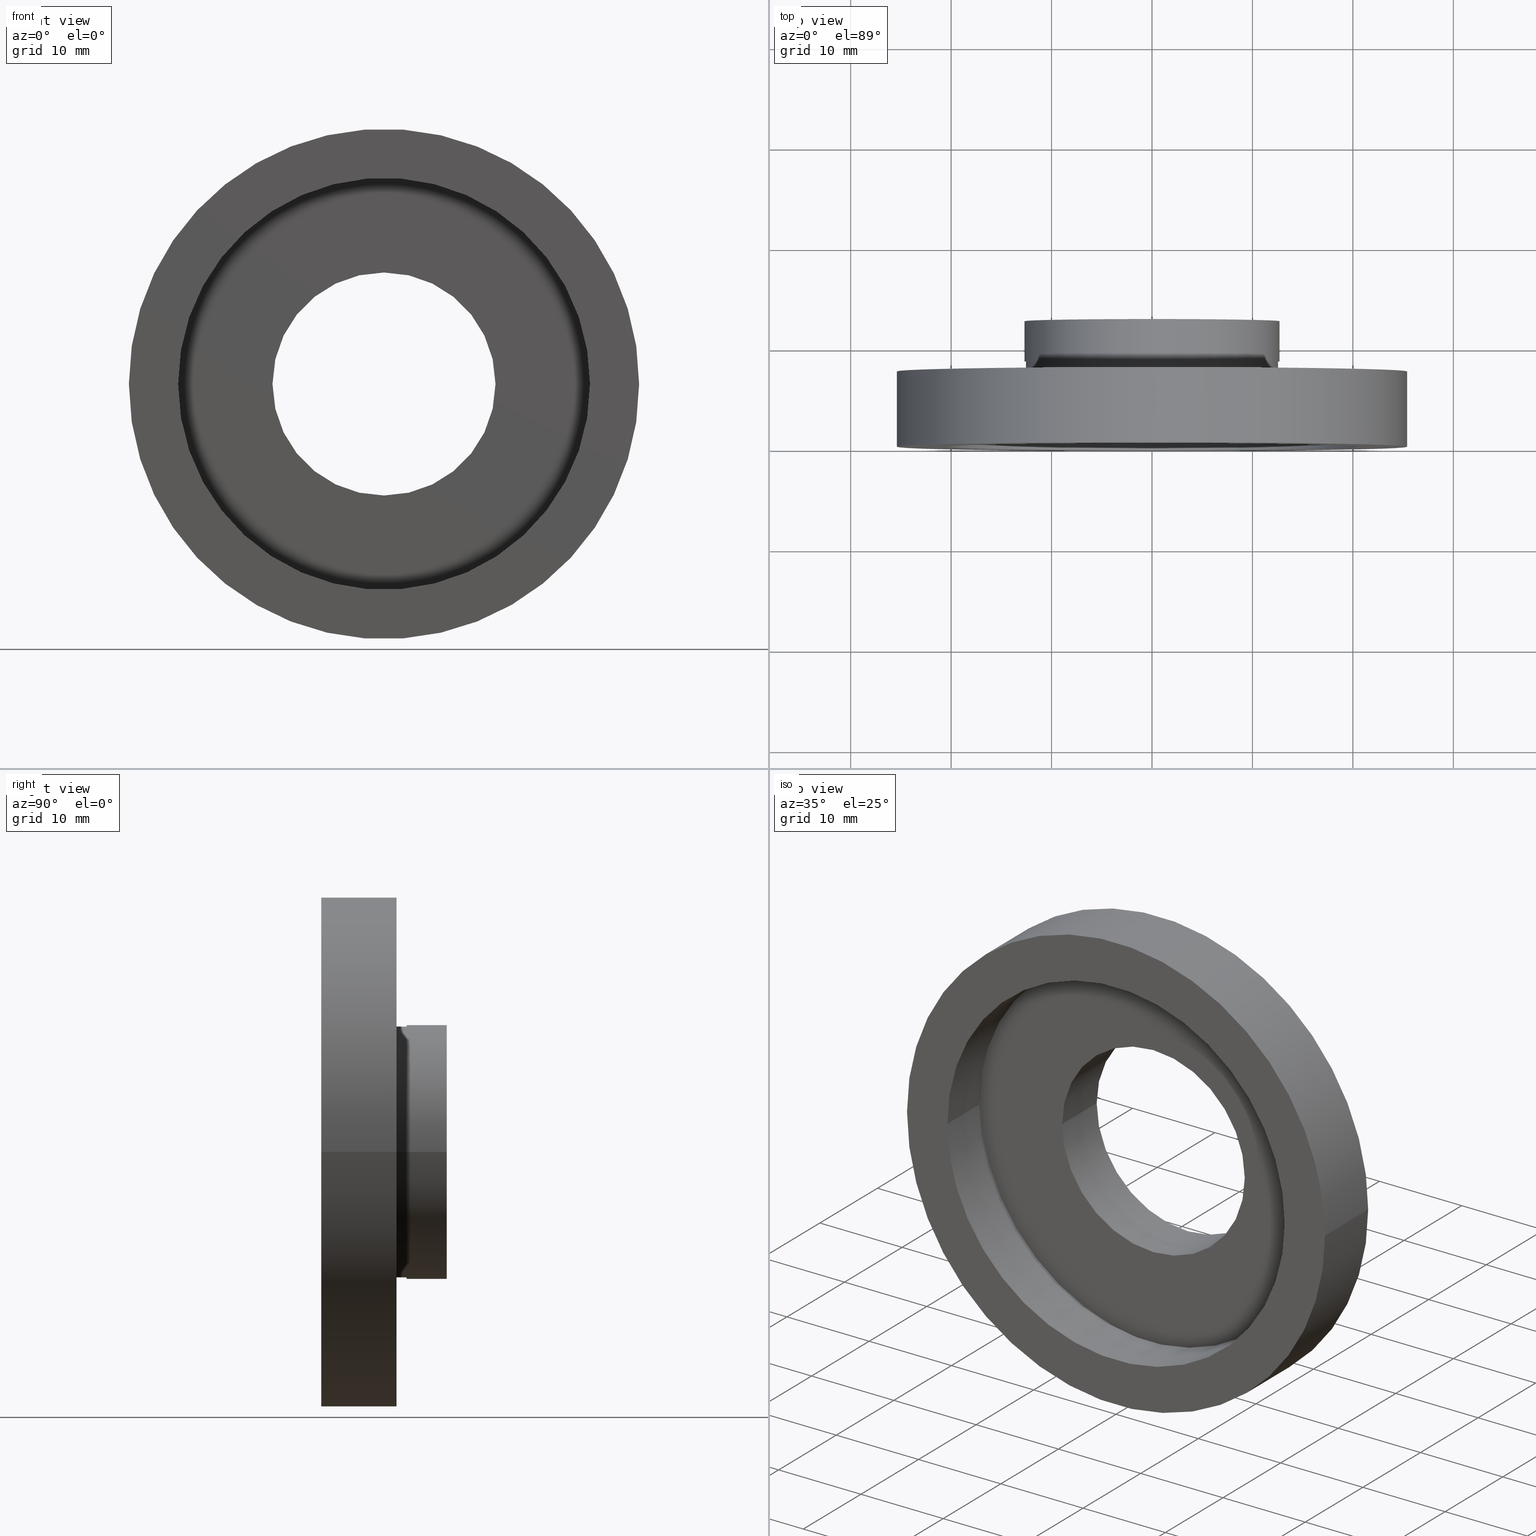
[diagram: canonical four-view strip — front | top / right | iso, engineering-drawing reading convention]
A machine part, canonical four-view strip (front | top / right | iso — engineering-drawing reading convention). The complete STEP part file that produces these views, byte-faithful:
ISO-10303-21;
HEADER;
FILE_DESCRIPTION (( 'STEP AP214' ),
    '1' );
FILE_NAME ('504042.STEP',
    '2019-10-08T02:54:37',
    ( 'user' ),
    ( '΢���й�' ),
    'SwSTEP 2.0',
    'SolidWorks 2016',
    '' );
FILE_SCHEMA (( 'AUTOMOTIVE_DESIGN' ));
ENDSEC;

DATA;
#1 = APPLICATION_CONTEXT ( 'automotive_design' ) ;
#2 = PRODUCT_DEFINITION ( 'δ֪', '', #325, #175 ) ;
#3 = ORIENTED_EDGE ( 'NONE', *, *, #55, .T. ) ;
#4 = CARTESIAN_POINT ( 'NONE',  ( 2.067940818438636500E-015, -3.469446951953614200E-015, 0.0000000000000000000 ) ) ;
#5 = VERTEX_POINT ( 'NONE', #129 ) ;
#6 = DIRECTION ( 'NONE',  ( -1.224646799147351000E-016, 1.000000000000000000, -0.0000000000000000000 ) ) ;
#7 = DIRECTION ( 'NONE',  ( -1.000000000000000000, -1.224646799147351000E-016, 0.0000000000000000000 ) ) ;
#8 = CARTESIAN_POINT ( 'NONE',  ( 25.39999999999999900, 16.88601823708208000, 3.110602869834276900E-015 ) ) ;
#9 = AXIS2_PLACEMENT_3D ( 'NONE', #261, #277, #158 ) ;
#10 = CIRCLE ( 'NONE', #509, 20.50000000000000000 ) ;
#11 = ORIENTED_EDGE ( 'NONE', *, *, #525, .F. ) ;
#12 = DIRECTION ( 'NONE',  ( -1.224646799147351000E-016, 1.000000000000000000, 0.0000000000000000000 ) ) ;
#13 = DIRECTION ( 'NONE',  ( -1.000000000000000000, 0.0000000000000000000, 0.0000000000000000000 ) ) ;
#14 = CARTESIAN_POINT ( 'NONE',  ( -25.39999999999999900, 7.499999999999992900, 0.0000000000000000000 ) ) ;
#15 = EDGE_CURVE ( 'NONE', #97, #494, #579, .T. ) ;
#16 =( NAMED_UNIT ( * ) PLANE_ANGLE_UNIT ( ) SI_UNIT ( $, .RADIAN. ) );
#17 = CYLINDRICAL_SURFACE ( 'NONE', #199, 12.69999999999999900 ) ;
#18 = SURFACE_STYLE_FILL_AREA ( #393 ) ;
#19 = ORIENTED_EDGE ( 'NONE', *, *, #55, .F. ) ;
#20 = EDGE_LOOP ( 'NONE', ( #377, #244, #283, #245 ) ) ;
#21 = CYLINDRICAL_SURFACE ( 'NONE', #488, 11.10000000000000100 ) ;
#22 = ORIENTED_EDGE ( 'NONE', *, *, #480, .T. ) ;
#23 = SURFACE_SIDE_STYLE ('',( #56 ) ) ;
#24 = PRESENTATION_STYLE_ASSIGNMENT (( #503 ) ) ;
#25 = EDGE_CURVE ( 'NONE', #448, #58, #440, .T. ) ;
#26 = CARTESIAN_POINT ( 'NONE',  ( 1.394385078907593000E-015, 5.499999999999998200, 0.0000000000000000000 ) ) ;
#27 = ORIENTED_EDGE ( 'NONE', *, *, #550, .T. ) ;
#28 = FACE_OUTER_BOUND ( 'NONE', #301, .T. ) ;
#29 = PLANE ( 'NONE',  #369 ) ;
#30 = ORIENTED_EDGE ( 'NONE', *, *, #521, .F. ) ;
#31 = UNCERTAINTY_MEASURE_WITH_UNIT (LENGTH_MEASURE( 1.000000000000000100E-005 ), #229, 'distance_accuracy_value', 'NONE');
#32 =( GEOMETRIC_REPRESENTATION_CONTEXT ( 3 ) GLOBAL_UNCERTAINTY_ASSIGNED_CONTEXT ( ( #53 ) ) GLOBAL_UNIT_ASSIGNED_CONTEXT ( ( #306, #399, #315 ) ) REPRESENTATION_CONTEXT ( 'NONE', 'WORKASPACE' ) );
#33 = APPLICATION_PROTOCOL_DEFINITION ( 'draft international standard', 'automotive_design', 1998, #1 ) ;
#34 = CARTESIAN_POINT ( 'NONE',  ( 25.39999999999999900, -7.703719777548943400E-031, 0.0000000000000000000 ) ) ;
#35 = ORIENTED_EDGE ( 'NONE', *, *, #549, .F. ) ;
#36 = MECHANICAL_DESIGN_GEOMETRIC_PRESENTATION_REPRESENTATION (  '', ( #65 ), #32 ) ;
#37 = ORIENTED_EDGE ( 'NONE', *, *, #588, .T. ) ;
#38 = PLANE ( 'NONE',  #70 ) ;
#39 = DIRECTION ( 'NONE',  ( -1.224646799147351000E-016, 1.000000000000000000, -0.0000000000000000000 ) ) ;
#40 = ORIENTED_EDGE ( 'NONE', *, *, #137, .F. ) ;
#41 = EDGE_LOOP ( 'NONE', ( #357, #198 ) ) ;
#42 =( NAMED_UNIT ( * ) SI_UNIT ( $, .STERADIAN. ) SOLID_ANGLE_UNIT ( ) );
#43 = LINE ( 'NONE', #577, #574 ) ;
#44 = CARTESIAN_POINT ( 'NONE',  ( 2.067940818438636500E-015, -3.469446951953614200E-015, 0.0000000000000000000 ) ) ;
#45 = CARTESIAN_POINT ( 'NONE',  ( 25.39999999999999900, 7.500000000000000000, 3.110602869834276900E-015 ) ) ;
#46 = FACE_OUTER_BOUND ( 'NONE', #117, .T. ) ;
#47 = UNCERTAINTY_MEASURE_WITH_UNIT (LENGTH_MEASURE( 1.000000000000000100E-005 ), #487, 'distance_accuracy_value', 'NONE');
#48 = EDGE_CURVE ( 'NONE', #593, #448, #364, .T. ) ;
#49 = ORIENTED_EDGE ( 'NONE', *, *, #537, .T. ) ;
#50 = DIRECTION ( 'NONE',  ( -1.224646799147351000E-016, 1.000000000000000000, -0.0000000000000000000 ) ) ;
#51 = VERTEX_POINT ( 'NONE', #334 ) ;
#52 = DIRECTION ( 'NONE',  ( -1.000000000000000000, -1.224646799147351000E-016, 0.0000000000000000000 ) ) ;
#53 = UNCERTAINTY_MEASURE_WITH_UNIT (LENGTH_MEASURE( 1.000000000000000100E-005 ), #306, 'distance_accuracy_value', 'NONE');
#54 = PRESENTATION_LAYER_ASSIGNMENT (  '', '', ( #65 ) ) ;
#55 = EDGE_CURVE ( 'NONE', #292, #616, #285, .T. ) ;
#56 = SURFACE_STYLE_FILL_AREA ( #75 ) ;
#57 = ORIENTED_EDGE ( 'NONE', *, *, #576, .F. ) ;
#58 = VERTEX_POINT ( 'NONE', #188 ) ;
#59 = EDGE_CURVE ( 'NONE', #582, #51, #372, .T. ) ;
#60 = EDGE_CURVE ( 'NONE', #255, #418, #10, .T. ) ;
#61 = CARTESIAN_POINT ( 'NONE',  ( -20.49999999999999600, -5.979972890205683900E-015, 0.0000000000000000000 ) ) ;
#62 = CARTESIAN_POINT ( 'NONE',  ( 20.50000000000000400, 16.88601823708208000, 2.510525938252074500E-015 ) ) ;
#63 = CARTESIAN_POINT ( 'NONE',  ( 25.39999999999999900, -3.588440821193433400E-016, 3.110602869834276900E-015 ) ) ;
#64 = COLOUR_RGB ( '',1.000000000000000000, 1.000000000000000000, 1.000000000000000000 ) ;
#65 = STYLED_ITEM ( 'NONE', ( #314 ), #438 ) ;
#66 = CARTESIAN_POINT ( 'NONE',  ( -12.69999999999999900, 12.49999999999999500, 0.0000000000000000000 ) ) ;
#67 = ORIENTED_EDGE ( 'NONE', *, *, #598, .T. ) ;
#68 = EDGE_LOOP ( 'NONE', ( #216, #256, #432, #170 ) ) ;
#69 = PRODUCT_CONTEXT ( 'NONE', #365, 'mechanical' ) ;
#70 = AXIS2_PLACEMENT_3D ( 'NONE', #149, #119, #302 ) ;
#71 =( GEOMETRIC_REPRESENTATION_CONTEXT ( 3 ) GLOBAL_UNCERTAINTY_ASSIGNED_CONTEXT ( ( #207 ) ) GLOBAL_UNIT_ASSIGNED_CONTEXT ( ( #111, #93, #463 ) ) REPRESENTATION_CONTEXT ( 'NONE', 'WORKASPACE' ) );
#72 =( NAMED_UNIT ( * ) SI_UNIT ( $, .STERADIAN. ) SOLID_ANGLE_UNIT ( ) );
#73 = DIRECTION ( 'NONE',  ( -1.224646799147351000E-016, 1.000000000000000000, -0.0000000000000000000 ) ) ;
#74 = CARTESIAN_POINT ( 'NONE',  ( 11.10000000000000100, 6.499999999999999100, 1.359357947053562400E-015 ) ) ;
#75 = FILL_AREA_STYLE ('',( #333 ) ) ;
#76 =( NAMED_UNIT ( * ) PLANE_ANGLE_UNIT ( ) SI_UNIT ( $, .RADIAN. ) );
#77 = FACE_OUTER_BOUND ( 'NONE', #307, .T. ) ;
#78 = VERTEX_POINT ( 'NONE', #359 ) ;
#79 = EDGE_CURVE ( 'NONE', #494, #402, #156, .T. ) ;
#80 =( LENGTH_UNIT ( ) NAMED_UNIT ( * ) SI_UNIT ( .MILLI., .METRE. ) );
#81 = ORIENTED_EDGE ( 'NONE', *, *, #532, .T. ) ;
#82 = ORIENTED_EDGE ( 'NONE', *, *, #480, .F. ) ;
#83 = SURFACE_SIDE_STYLE ('',( #391 ) ) ;
#84 = SURFACE_STYLE_USAGE ( .BOTH. , #87 ) ;
#85 = CARTESIAN_POINT ( 'NONE',  ( 2.067940818438636500E-015, -3.469446951953614200E-015, 0.0000000000000000000 ) ) ;
#86 = COLOUR_RGB ( '',1.000000000000000000, 1.000000000000000000, 1.000000000000000000 ) ;
#87 = SURFACE_SIDE_STYLE ('',( #299 ) ) ;
#88 = EDGE_LOOP ( 'NONE', ( #581, #267 ) ) ;
#89 = DIRECTION ( 'NONE',  ( -1.224646799147351000E-016, 1.000000000000000000, -0.0000000000000000000 ) ) ;
#90 = ORIENTED_EDGE ( 'NONE', *, *, #106, .T. ) ;
#91 = ADVANCED_FACE ( 'NONE', ( #312 ), #21, .F. ) ;
#92 = AXIS2_PLACEMENT_3D ( 'NONE', #330, #351, #356 ) ;
#93 =( NAMED_UNIT ( * ) PLANE_ANGLE_UNIT ( ) SI_UNIT ( $, .RADIAN. ) );
#94 = FACE_OUTER_BOUND ( 'NONE', #20, .T. ) ;
#95 = DIRECTION ( 'NONE',  ( -1.224646799147351000E-016, 1.000000000000000000, -0.0000000000000000000 ) ) ;
#96 = ORIENTED_EDGE ( 'NONE', *, *, #534, .F. ) ;
#97 = VERTEX_POINT ( 'NONE', #407 ) ;
#98 = AXIS2_PLACEMENT_3D ( 'NONE', #273, #95, #571 ) ;
#99 = SURFACE_STYLE_USAGE ( .BOTH. , #83 ) ;
#100 = ORIENTED_EDGE ( 'NONE', *, *, #557, .F. ) ;
#101 = AXIS2_PLACEMENT_3D ( 'NONE', #368, #565, #358 ) ;
#102 = DIRECTION ( 'NONE',  ( 1.000000000000000000, 1.224646799147351000E-016, 0.0000000000000000000 ) ) ;
#103 = EDGE_CURVE ( 'NONE', #402, #494, #417, .T. ) ;
#104 = DIRECTION ( 'NONE',  ( -1.000000000000000000, -1.224646799147351200E-016, 0.0000000000000000000 ) ) ;
#105 = FILL_AREA_STYLE ('',( #107 ) ) ;
#106 = EDGE_CURVE ( 'NONE', #58, #448, #615, .T. ) ;
#107 = FILL_AREA_STYLE_COLOUR ( '', #395 ) ;
#108 = ADVANCED_FACE ( 'NONE', ( #28 ), #155, .F. ) ;
#109 = AXIS2_PLACEMENT_3D ( 'NONE', #26, #374, #568 ) ;
#110 = DIRECTION ( 'NONE',  ( -1.000000000000000000, -1.562813942321447800E-016, 0.0000000000000000000 ) ) ;
#111 =( LENGTH_UNIT ( ) NAMED_UNIT ( * ) SI_UNIT ( .MILLI., .METRE. ) );
#112 = PLANE ( 'NONE',  #400 ) ;
#113 = DIRECTION ( 'NONE',  ( -1.000000000000000000, -1.692413147294445700E-016, 0.0000000000000000000 ) ) ;
#114 = EDGE_LOOP ( 'NONE', ( #341, #573 ) ) ;
#115 = AXIS2_PLACEMENT_3D ( 'NONE', #176, #531, #262 ) ;
#116 = AXIS2_PLACEMENT_3D ( 'NONE', #619, #89, #444 ) ;
#117 = EDGE_LOOP ( 'NONE', ( #208, #22, #67, #608 ) ) ;
#118 = ORIENTED_EDGE ( 'NONE', *, *, #517, .T. ) ;
#119 = DIRECTION ( 'NONE',  ( 1.224646799147351000E-016, -1.000000000000000000, 0.0000000000000000000 ) ) ;
#120 = CARTESIAN_POINT ( 'NONE',  ( 5.371323195044474300E-016, 12.49999999999999600, 0.0000000000000000000 ) ) ;
#121 = AXIS2_PLACEMENT_3D ( 'NONE', #130, #472, #258 ) ;
#122 =( LENGTH_UNIT ( ) NAMED_UNIT ( * ) SI_UNIT ( .MILLI., .METRE. ) );
#123 = EDGE_LOOP ( 'NONE', ( #412, #232 ) ) ;
#124 =( NAMED_UNIT ( * ) SI_UNIT ( $, .STERADIAN. ) SOLID_ANGLE_UNIT ( ) );
#125 = DIRECTION ( 'NONE',  ( -1.224646799147351000E-016, 1.000000000000000000, -0.0000000000000000000 ) ) ;
#126 =( NAMED_UNIT ( * ) PLANE_ANGLE_UNIT ( ) SI_UNIT ( $, .RADIAN. ) );
#127 = AXIS2_PLACEMENT_3D ( 'NONE', #427, #320, #604 ) ;
#128 = SURFACE_SIDE_STYLE ('',( #18 ) ) ;
#129 = CARTESIAN_POINT ( 'NONE',  ( -20.50000000000000400, 5.499999999999995600, 0.0000000000000000000 ) ) ;
#130 = CARTESIAN_POINT ( 'NONE',  ( 1.394385078907593200E-015, 5.499999999999996400, 0.0000000000000000000 ) ) ;
#131 = AXIS2_PLACEMENT_3D ( 'NONE', #310, #430, #454 ) ;
#132 = EDGE_LOOP ( 'NONE', ( #57, #321, #118, #251 ) ) ;
#133 = EDGE_LOOP ( 'NONE', ( #233, #11 ) ) ;
#134 = SURFACE_STYLE_USAGE ( .BOTH. , #139 ) ;
#135 = ADVANCED_FACE ( 'NONE', ( #600, #225 ), #211, .F. ) ;
#136 = AXIS2_PLACEMENT_3D ( 'NONE', #189, #599, #560 ) ;
#137 = EDGE_CURVE ( 'NONE', #363, #203, #462, .T. ) ;
#138 = EDGE_LOOP ( 'NONE', ( #323, #81, #609, #204 ) ) ;
#139 = SURFACE_SIDE_STYLE ('',( #304 ) ) ;
#140 = ADVANCED_FACE ( 'NONE', ( #492 ), #343, .F. ) ;
#141 = AXIS2_PLACEMENT_3D ( 'NONE', #328, #279, #257 ) ;
#142 = CARTESIAN_POINT ( 'NONE',  ( 21.10000000000000100, 16.88601823708208000, 2.584004746200915400E-015 ) ) ;
#143 = CYLINDRICAL_SURFACE ( 'NONE', #254, 12.55000000000000100 ) ;
#144 = FACE_OUTER_BOUND ( 'NONE', #145, .T. ) ;
#145 = EDGE_LOOP ( 'NONE', ( #100, #224, #322, #96 ) ) ;
#146 = UNCERTAINTY_MEASURE_WITH_UNIT (LENGTH_MEASURE( 1.000000000000000100E-005 ), #293, 'distance_accuracy_value', 'NONE');
#147 = ORIENTED_EDGE ( 'NONE', *, *, #557, .T. ) ;
#148 = FILL_AREA_STYLE ('',( #173 ) ) ;
#149 = CARTESIAN_POINT ( 'NONE',  ( 12.55000000000000200, 7.499999999999999100, 0.0000000000000000000 ) ) ;
#150 = PRODUCT ( '504042', '504042', '', ( #69 ) ) ;
#151 = AXIS2_PLACEMENT_3D ( 'NONE', #4, #214, #489 ) ;
#152 = CYLINDRICAL_SURFACE ( 'NONE', #265, 20.50000000000000400 ) ;
#153 = DIRECTION ( 'NONE',  ( -1.224646799147351000E-016, 1.000000000000000000, -0.0000000000000000000 ) ) ;
#154 = CARTESIAN_POINT ( 'NONE',  ( 11.10000000000000100, 6.499999999999998200, 0.0000000000000000000 ) ) ;
#155 = CYLINDRICAL_SURFACE ( 'NONE', #468, 11.10000000000000100 ) ;
#156 = CIRCLE ( 'NONE', #507, 25.39999999999999900 ) ;
#157 = MANIFOLD_SOLID_BREP ( '��ת1', #281 ) ;
#158 = DIRECTION ( 'NONE',  ( 1.000000000000000000, 0.0000000000000000000, 0.0000000000000000000 ) ) ;
#159 = DIRECTION ( 'NONE',  ( -1.000000000000000000, -1.365923996832131600E-016, 0.0000000000000000000 ) ) ;
#160 = DIRECTION ( 'NONE',  ( -1.224646799147351000E-016, 1.000000000000000000, -0.0000000000000000000 ) ) ;
#161 = AXIS2_PLACEMENT_3D ( 'NONE', #422, #166, #379 ) ;
#162 = DIRECTION ( 'NONE',  ( -1.224646799147351000E-016, 1.000000000000000000, -0.0000000000000000000 ) ) ;
#163 = ADVANCED_FACE ( 'NONE', ( #474, #561 ), #112, .F. ) ;
#164 = SURFACE_STYLE_FILL_AREA ( #491 ) ;
#165 = AXIS2_PLACEMENT_3D ( 'NONE', #447, #500, #621 ) ;
#166 = DIRECTION ( 'NONE',  ( -1.224646799147351000E-016, 1.000000000000000000, -0.0000000000000000000 ) ) ;
#167 = CARTESIAN_POINT ( 'NONE',  ( 5.371323195044474300E-016, 12.49999999999999600, 0.0000000000000000000 ) ) ;
#168 = SURFACE_STYLE_FILL_AREA ( #538 ) ;
#169 = ORIENTED_EDGE ( 'NONE', *, *, #545, .F. ) ;
#170 = ORIENTED_EDGE ( 'NONE', *, *, #612, .F. ) ;
#171 = DIRECTION ( 'NONE',  ( -1.224646799147351000E-016, 1.000000000000000000, -0.0000000000000000000 ) ) ;
#172 = FILL_AREA_STYLE ('',( #475 ) ) ;
#173 = FILL_AREA_STYLE_COLOUR ( '', #252 ) ;
#174 = CYLINDRICAL_SURFACE ( 'NONE', #247, 12.55000000000000100 ) ;
#175 = PRODUCT_DEFINITION_CONTEXT ( 'detailed design', #1, 'design' ) ;
#176 = CARTESIAN_POINT ( 'NONE',  ( 1.149455719078122700E-015, 7.499999999999998200, 0.0000000000000000000 ) ) ;
#177 = ORIENTED_EDGE ( 'NONE', *, *, #60, .F. ) ;
#178 = AXIS2_PLACEMENT_3D ( 'NONE', #219, #389, #13 ) ;
#179 = AXIS2_PLACEMENT_3D ( 'NONE', #85, #200, #52 ) ;
#180 = EDGE_CURVE ( 'NONE', #274, #416, #605, .T. ) ;
#181 = APPLICATION_PROTOCOL_DEFINITION ( 'draft international standard', 'automotive_design', 1998, #365 ) ;
#182 = AXIS2_PLACEMENT_3D ( 'NONE', #120, #73, #376 ) ;
#183 = PRESENTATION_STYLE_ASSIGNMENT (( #544 ) ) ;
#184 = COLOUR_RGB ( '',1.000000000000000000, 1.000000000000000000, 1.000000000000000000 ) ;
#185 = CARTESIAN_POINT ( 'NONE',  ( 0.0000000000000000000, 16.88601823708207700, 0.0000000000000000000 ) ) ;
#186 = ORIENTED_EDGE ( 'NONE', *, *, #612, .T. ) ;
#187 = UNCERTAINTY_MEASURE_WITH_UNIT (LENGTH_MEASURE( 1.000000000000000100E-005 ), #513, 'distance_accuracy_value', 'NONE');
#188 = CARTESIAN_POINT ( 'NONE',  ( -21.10000000000000100, 6.499999999999994700, 0.0000000000000000000 ) ) ;
#189 = CARTESIAN_POINT ( 'NONE',  ( 1.026991039163387700E-015, 8.499999999999998200, 0.0000000000000000000 ) ) ;
#190 = EDGE_LOOP ( 'NONE', ( #253, #542 ) ) ;
#191 =( GEOMETRIC_REPRESENTATION_CONTEXT ( 3 ) GLOBAL_UNCERTAINTY_ASSIGNED_CONTEXT ( ( #31 ) ) GLOBAL_UNIT_ASSIGNED_CONTEXT ( ( #229, #210, #535 ) ) REPRESENTATION_CONTEXT ( 'NONE', 'WORKASPACE' ) );
#192 = DIRECTION ( 'NONE',  ( -1.000000000000000000, 0.0000000000000000000, 0.0000000000000000000 ) ) ;
#193 = CIRCLE ( 'NONE', #362, 12.69999999999999900 ) ;
#194 = ORIENTED_EDGE ( 'NONE', *, *, #549, .T. ) ;
#195 = SURFACE_STYLE_USAGE ( .BOTH. , #23 ) ;
#196 = MECHANICAL_DESIGN_GEOMETRIC_PRESENTATION_REPRESENTATION (  '', ( #213 ), #191 ) ;
#197 = DIRECTION ( 'NONE',  ( -1.224646799147351000E-016, 1.000000000000000000, -0.0000000000000000000 ) ) ;
#198 = ORIENTED_EDGE ( 'NONE', *, *, #137, .T. ) ;
#199 = AXIS2_PLACEMENT_3D ( 'NONE', #318, #298, #355 ) ;
#200 = DIRECTION ( 'NONE',  ( -1.224646799147351000E-016, 1.000000000000000000, -0.0000000000000000000 ) ) ;
#201 = FACE_OUTER_BOUND ( 'NONE', #373, .T. ) ;
#202 = CARTESIAN_POINT ( 'NONE',  ( -12.55000000000000100, 16.88601823708207700, 0.0000000000000000000 ) ) ;
#203 = VERTEX_POINT ( 'NONE', #66 ) ;
#204 = ORIENTED_EDGE ( 'NONE', *, *, #103, .F. ) ;
#205 = DIRECTION ( 'NONE',  ( -1.224646799147351000E-016, 1.000000000000000000, -0.0000000000000000000 ) ) ;
#206 = DIRECTION ( 'NONE',  ( 1.000000000000000000, 1.224646799147351000E-016, 0.0000000000000000000 ) ) ;
#207 = UNCERTAINTY_MEASURE_WITH_UNIT (LENGTH_MEASURE( 1.000000000000000100E-005 ), #111, 'distance_accuracy_value', 'NONE');
#208 = ORIENTED_EDGE ( 'NONE', *, *, #590, .F. ) ;
#209 = VECTOR ( 'NONE', #263, 1000.000000000000000 ) ;
#210 =( NAMED_UNIT ( * ) PLANE_ANGLE_UNIT ( ) SI_UNIT ( $, .RADIAN. ) );
#211 = PLANE ( 'NONE',  #461 ) ;
#212 = ADVANCED_FACE ( 'NONE', ( #587, #539 ), #401, .F. ) ;
#213 = STYLED_ITEM ( 'NONE', ( #24 ), #437 ) ;
#214 = DIRECTION ( 'NONE',  ( -1.224646799147351000E-016, 1.000000000000000000, -0.0000000000000000000 ) ) ;
#215 = VERTEX_POINT ( 'NONE', #366 ) ;
#216 = ORIENTED_EDGE ( 'NONE', *, *, #566, .F. ) ;
#217 = PRESENTATION_STYLE_ASSIGNMENT (( #134 ) ) ;
#218 = ORIENTED_EDGE ( 'NONE', *, *, #180, .T. ) ;
#219 = CARTESIAN_POINT ( 'NONE',  ( 0.0000000000000000000, 16.88601823708207700, 0.0000000000000000000 ) ) ;
#220 = UNCERTAINTY_MEASURE_WITH_UNIT (LENGTH_MEASURE( 1.000000000000000100E-005 ), #80, 'distance_accuracy_value', 'NONE');
#221 = ADVANCED_FACE ( 'NONE', ( #614, #523 ), #29, .F. ) ;
#222 = FACE_OUTER_BOUND ( 'NONE', #476, .T. ) ;
#223 = FACE_OUTER_BOUND ( 'NONE', #378, .T. ) ;
#224 = ORIENTED_EDGE ( 'NONE', *, *, #525, .T. ) ;
#225 = FACE_OUTER_BOUND ( 'NONE', #41, .T. ) ;
#226 = ORIENTED_EDGE ( 'NONE', *, *, #534, .T. ) ;
#227 = EDGE_LOOP ( 'NONE', ( #240, #282, #186, #90 ) ) ;
#228 = CARTESIAN_POINT ( 'NONE',  ( -21.10000000000000100, 16.88601823708207300, 0.0000000000000000000 ) ) ;
#229 =( LENGTH_UNIT ( ) NAMED_UNIT ( * ) SI_UNIT ( .MILLI., .METRE. ) );
#230 = CARTESIAN_POINT ( 'NONE',  ( 11.10000000000000100, 12.49999999999999800, 0.0000000000000000000 ) ) ;
#231 = CARTESIAN_POINT ( 'NONE',  ( 0.0000000000000000000, 16.88601823708207700, 0.0000000000000000000 ) ) ;
#232 = ORIENTED_EDGE ( 'NONE', *, *, #598, .F. ) ;
#233 = ORIENTED_EDGE ( 'NONE', *, *, #580, .F. ) ;
#234 = PRESENTATION_LAYER_ASSIGNMENT (  '', '', ( #213 ) ) ;
#235 = CARTESIAN_POINT ( 'NONE',  ( 12.55000000000000100, 16.88601823708207700, 1.536931732929928400E-015 ) ) ;
#236 =( GEOMETRIC_REPRESENTATION_CONTEXT ( 3 ) GLOBAL_UNCERTAINTY_ASSIGNED_CONTEXT ( ( #47 ) ) GLOBAL_UNIT_ASSIGNED_CONTEXT ( ( #487, #16, #290 ) ) REPRESENTATION_CONTEXT ( 'NONE', 'WORKASPACE' ) );
#237 = EDGE_LOOP ( 'NONE', ( #218, #345 ) ) ;
#238 = VERTEX_POINT ( 'NONE', #249 ) ;
#239 = DIRECTION ( 'NONE',  ( -1.224646799147351000E-016, 1.000000000000000000, -0.0000000000000000000 ) ) ;
#240 = ORIENTED_EDGE ( 'NONE', *, *, #48, .F. ) ;
#241 = MECHANICAL_DESIGN_GEOMETRIC_PRESENTATION_REPRESENTATION (  '', ( #272 ), #236 ) ;
#242 = ORIENTED_EDGE ( 'NONE', *, *, #291, .F. ) ;
#243 = CARTESIAN_POINT ( 'NONE',  ( -11.10000000000000100, 12.49999999999999500, 0.0000000000000000000 ) ) ;
#244 = ORIENTED_EDGE ( 'NONE', *, *, #558, .T. ) ;
#245 = ORIENTED_EDGE ( 'NONE', *, *, #15, .F. ) ;
#246 = CARTESIAN_POINT ( 'NONE',  ( -12.69999999999999600, 8.499999999999996400, 0.0000000000000000000 ) ) ;
#247 = AXIS2_PLACEMENT_3D ( 'NONE', #326, #423, #192 ) ;
#248 = DIRECTION ( 'NONE',  ( -1.000000000000000000, 0.0000000000000000000, 0.0000000000000000000 ) ) ;
#249 = CARTESIAN_POINT ( 'NONE',  ( 12.55000000000000200, 8.500000000000000000, 1.536931732929928400E-015 ) ) ;
#250 = CARTESIAN_POINT ( 'NONE',  ( -11.09999999999999800, 6.499999999999995600, 0.0000000000000000000 ) ) ;
#251 = ORIENTED_EDGE ( 'NONE', *, *, #527, .F. ) ;
#252 = COLOUR_RGB ( '',1.000000000000000000, 1.000000000000000000, 1.000000000000000000 ) ;
#253 = ORIENTED_EDGE ( 'NONE', *, *, #59, .F. ) ;
#254 = AXIS2_PLACEMENT_3D ( 'NONE', #231, #50, #431 ) ;
#255 = VERTEX_POINT ( 'NONE', #61 ) ;
#256 = ORIENTED_EDGE ( 'NONE', *, *, #48, .T. ) ;
#257 = DIRECTION ( 'NONE',  ( -1.000000000000000000, -1.382249781654826400E-016, 0.0000000000000000000 ) ) ;
#258 = DIRECTION ( 'NONE',  ( -1.000000000000000000, -1.233215741215739600E-016, 0.0000000000000000000 ) ) ;
#259 = VERTEX_POINT ( 'NONE', #533 ) ;
#260 = COLOUR_RGB ( '',1.000000000000000000, 1.000000000000000000, 1.000000000000000000 ) ;
#261 = CARTESIAN_POINT ( 'NONE',  ( 0.0000000000000000000, 0.0000000000000000000, 0.0000000000000000000 ) ) ;
#262 = DIRECTION ( 'NONE',  ( -1.000000000000000000, -1.382249781654826400E-016, 0.0000000000000000000 ) ) ;
#263 = DIRECTION ( 'NONE',  ( -1.224646799147351000E-016, 1.000000000000000000, -0.0000000000000000000 ) ) ;
#264 =( NAMED_UNIT ( * ) SI_UNIT ( $, .STERADIAN. ) SOLID_ANGLE_UNIT ( ) );
#265 = AXIS2_PLACEMENT_3D ( 'NONE', #479, #415, #556 ) ;
#266 = CARTESIAN_POINT ( 'NONE',  ( 12.69999999999999900, 16.88601823708207700, 1.555301434917138400E-015 ) ) ;
#267 = ORIENTED_EDGE ( 'NONE', *, *, #590, .T. ) ;
#268 =( NAMED_UNIT ( * ) PLANE_ANGLE_UNIT ( ) SI_UNIT ( $, .RADIAN. ) );
#269 = VERTEX_POINT ( 'NONE', #63 ) ;
#270 = ORIENTED_EDGE ( 'NONE', *, *, #180, .F. ) ;
#271 =( LENGTH_UNIT ( ) NAMED_UNIT ( * ) SI_UNIT ( .MILLI., .METRE. ) );
#272 = STYLED_ITEM ( 'NONE', ( #183 ), #424 ) ;
#273 = CARTESIAN_POINT ( 'NONE',  ( 1.394385078907593200E-015, 5.499999999999996400, 0.0000000000000000000 ) ) ;
#274 = VERTEX_POINT ( 'NONE', #250 ) ;
#275 = ORIENTED_EDGE ( 'NONE', *, *, #554, .T. ) ;
#276 = LINE ( 'NONE', #62, #611 ) ;
#277 = DIRECTION ( 'NONE',  ( 0.0000000000000000000, 0.0000000000000000000, 1.000000000000000000 ) ) ;
#278 = CARTESIAN_POINT ( 'NONE',  ( -25.39999999999999900, 16.88601823708207300, 0.0000000000000000000 ) ) ;
#279 = DIRECTION ( 'NONE',  ( -1.224646799147351000E-016, 1.000000000000000000, -0.0000000000000000000 ) ) ;
#280 = ADVANCED_FACE ( 'NONE', ( #570 ), #607, .F. ) ;
#281 = CLOSED_SHELL ( 'NONE', ( #317, #409, #424, #91, #540, #361, #163, #140, #360, #280, #221, #108, #135, #437, #212, #367, #624, #512 ) ) ;
#282 = ORIENTED_EDGE ( 'NONE', *, *, #596, .F. ) ;
#283 = ORIENTED_EDGE ( 'NONE', *, *, #79, .F. ) ;
#284 = DIRECTION ( 'NONE',  ( -1.224646799147351000E-016, 1.000000000000000000, -0.0000000000000000000 ) ) ;
#285 = CIRCLE ( 'NONE', #511, 12.69999999999999800 ) ;
#286 = ORIENTED_EDGE ( 'NONE', *, *, #59, .T. ) ;
#287 = PRODUCT_DEFINITION_SHAPE ( 'NONE', 'NONE',  #2 ) ;
#288 = DIRECTION ( 'NONE',  ( -1.224646799147351000E-016, 1.000000000000000000, 0.0000000000000000000 ) ) ;
#289 = CARTESIAN_POINT ( 'NONE',  ( 5.371323195044474300E-016, 12.49999999999999600, 0.0000000000000000000 ) ) ;
#290 =( NAMED_UNIT ( * ) SI_UNIT ( $, .STERADIAN. ) SOLID_ANGLE_UNIT ( ) );
#291 = EDGE_CURVE ( 'NONE', #203, #363, #193, .T. ) ;
#292 = VERTEX_POINT ( 'NONE', #337 ) ;
#293 =( LENGTH_UNIT ( ) NAMED_UNIT ( * ) SI_UNIT ( .MILLI., .METRE. ) );
#294 = ORIENTED_EDGE ( 'NONE', *, *, #527, .T. ) ;
#295 = CARTESIAN_POINT ( 'NONE',  ( 1.271920398992858000E-015, 6.499999999999997300, 0.0000000000000000000 ) ) ;
#296 = CARTESIAN_POINT ( 'NONE',  ( 20.50000000000000400, -9.589210137015444400E-016, 2.510525938252074500E-015 ) ) ;
#297 = SURFACE_STYLE_USAGE ( .BOTH. , #300 ) ;
#298 = DIRECTION ( 'NONE',  ( -1.224646799147351000E-016, 1.000000000000000000, -0.0000000000000000000 ) ) ;
#299 = SURFACE_STYLE_FILL_AREA ( #105 ) ;
#300 = SURFACE_SIDE_STYLE ('',( #601 ) ) ;
#301 = EDGE_LOOP ( 'NONE', ( #169, #270, #294, #286 ) ) ;
#302 = DIRECTION ( 'NONE',  ( 1.000000000000000000, 1.224646799147351000E-016, 0.0000000000000000000 ) ) ;
#303 = DIRECTION ( 'NONE',  ( -1.224646799147351000E-016, 1.000000000000000000, -0.0000000000000000000 ) ) ;
#304 = SURFACE_STYLE_FILL_AREA ( #148 ) ;
#305 = ORIENTED_EDGE ( 'NONE', *, *, #106, .F. ) ;
#306 =( LENGTH_UNIT ( ) NAMED_UNIT ( * ) SI_UNIT ( .MILLI., .METRE. ) );
#307 = EDGE_LOOP ( 'NONE', ( #35, #3, #552, #40 ) ) ;
#308 = DIRECTION ( 'NONE',  ( -1.000000000000000000, -1.233215741215739600E-016, 0.0000000000000000000 ) ) ;
#309 = PRESENTATION_LAYER_ASSIGNMENT (  '', '', ( #272 ) ) ;
#310 = CARTESIAN_POINT ( 'NONE',  ( 1.026991039163387700E-015, 8.499999999999998200, 0.0000000000000000000 ) ) ;
#311 =( GEOMETRIC_REPRESENTATION_CONTEXT ( 3 ) GLOBAL_UNCERTAINTY_ASSIGNED_CONTEXT ( ( #371 ) ) GLOBAL_UNIT_ASSIGNED_CONTEXT ( ( #271, #397, #42 ) ) REPRESENTATION_CONTEXT ( 'NONE', 'WORKASPACE' ) );
#312 = FACE_OUTER_BOUND ( 'NONE', #132, .T. ) ;
#313 = ORIENTED_EDGE ( 'NONE', *, *, #554, .F. ) ;
#314 = PRESENTATION_STYLE_ASSIGNMENT (( #99 ) ) ;
#315 =( NAMED_UNIT ( * ) SI_UNIT ( $, .STERADIAN. ) SOLID_ANGLE_UNIT ( ) );
#316 = COLOUR_RGB ( '',1.000000000000000000, 1.000000000000000000, 1.000000000000000000 ) ;
#317 = ADVANCED_FACE ( 'NONE', ( #94 ), #347, .T. ) ;
#318 = CARTESIAN_POINT ( 'NONE',  ( 0.0000000000000000000, 16.88601823708207700, 0.0000000000000000000 ) ) ;
#319 = CARTESIAN_POINT ( 'NONE',  ( 1.026991039163387700E-015, 8.499999999999998200, 0.0000000000000000000 ) ) ;
#320 = DIRECTION ( 'NONE',  ( -1.224646799147351000E-016, 1.000000000000000000, -0.0000000000000000000 ) ) ;
#321 = ORIENTED_EDGE ( 'NONE', *, *, #545, .T. ) ;
#322 = ORIENTED_EDGE ( 'NONE', *, *, #553, .T. ) ;
#323 = ORIENTED_EDGE ( 'NONE', *, *, #558, .F. ) ;
#324 = MECHANICAL_DESIGN_GEOMETRIC_PRESENTATION_REPRESENTATION (  '', ( #375 ), #311 ) ;
#325 = PRODUCT_DEFINITION_FORMATION_WITH_SPECIFIED_SOURCE ( '�κ�', '', #150, .NOT_KNOWN. ) ;
#326 = CARTESIAN_POINT ( 'NONE',  ( 0.0000000000000000000, 16.88601823708207700, 0.0000000000000000000 ) ) ;
#327 = DIRECTION ( 'NONE',  ( -1.000000000000000000, -1.233215741215739600E-016, 0.0000000000000000000 ) ) ;
#328 = CARTESIAN_POINT ( 'NONE',  ( 1.026991039163387700E-015, 8.499999999999998200, 0.0000000000000000000 ) ) ;
#329 = DIRECTION ( 'NONE',  ( -1.224646799147351000E-016, 1.000000000000000000, -0.0000000000000000000 ) ) ;
#330 = CARTESIAN_POINT ( 'NONE',  ( 1.394385078907593000E-015, 5.499999999999998200, 0.0000000000000000000 ) ) ;
#331 = ORIENTED_EDGE ( 'NONE', *, *, #550, .F. ) ;
#332 = CARTESIAN_POINT ( 'NONE',  ( 1.271920398992858000E-015, 6.499999999999997300, 0.0000000000000000000 ) ) ;
#333 = FILL_AREA_STYLE_COLOUR ( '', #64 ) ;
#334 = CARTESIAN_POINT ( 'NONE',  ( 11.10000000000000100, 12.49999999999999800, 1.359357947053562400E-015 ) ) ;
#335 = FACE_BOUND ( 'NONE', #123, .T. ) ;
#336 = PRESENTATION_LAYER_ASSIGNMENT (  '', '', ( #375 ) ) ;
#337 = CARTESIAN_POINT ( 'NONE',  ( 12.69999999999999900, 8.500000000000000000, 1.555301434917138400E-015 ) ) ;
#338 = AXIS2_PLACEMENT_3D ( 'NONE', #473, #524, #102 ) ;
#339 = PLANE ( 'NONE',  #338 ) ;
#340 = PRESENTATION_STYLE_ASSIGNMENT (( #84 ) ) ;
#341 = ORIENTED_EDGE ( 'NONE', *, *, #79, .T. ) ;
#342 = CARTESIAN_POINT ( 'NONE',  ( -12.69999999999999900, 16.88601823708207700, 0.0000000000000000000 ) ) ;
#343 = CYLINDRICAL_SURFACE ( 'NONE', #434, 20.50000000000000400 ) ;
#344 = PRESENTATION_STYLE_ASSIGNMENT (( #520 ) ) ;
#345 = ORIENTED_EDGE ( 'NONE', *, *, #576, .T. ) ;
#346 = AXIS2_PLACEMENT_3D ( 'NONE', #592, #530, #618 ) ;
#347 = CYLINDRICAL_SURFACE ( 'NONE', #346, 25.39999999999999900 ) ;
#348 = DIRECTION ( 'NONE',  ( -1.000000000000000000, -1.224646799147351000E-016, 0.0000000000000000000 ) ) ;
#349 = ORIENTED_EDGE ( 'NONE', *, *, #566, .T. ) ;
#350 = COLOUR_RGB ( '',1.000000000000000000, 1.000000000000000000, 1.000000000000000000 ) ;
#351 = DIRECTION ( 'NONE',  ( -1.224646799147351000E-016, 1.000000000000000000, -0.0000000000000000000 ) ) ;
#352 = AXIS2_PLACEMENT_3D ( 'NONE', #589, #459, #610 ) ;
#353 = CARTESIAN_POINT ( 'NONE',  ( 20.50000000000000400, 5.500000000000000900, 2.510525938252074500E-015 ) ) ;
#354 = FILL_AREA_STYLE_COLOUR ( '', #260 ) ;
#355 = DIRECTION ( 'NONE',  ( -1.000000000000000000, 0.0000000000000000000, 0.0000000000000000000 ) ) ;
#356 = DIRECTION ( 'NONE',  ( -1.000000000000000000, -1.269309860470834200E-016, 0.0000000000000000000 ) ) ;
#357 = ORIENTED_EDGE ( 'NONE', *, *, #291, .T. ) ;
#358 = DIRECTION ( 'NONE',  ( -1.000000000000000000, -1.224646799147351200E-016, 0.0000000000000000000 ) ) ;
#359 = CARTESIAN_POINT ( 'NONE',  ( 12.55000000000000200, 7.500000000000000000, 1.536931732929928400E-015 ) ) ;
#360 = ADVANCED_FACE ( 'NONE', ( #335, #223 ), #339, .F. ) ;
#361 = ADVANCED_FACE ( 'NONE', ( #46 ), #152, .F. ) ;
#362 = AXIS2_PLACEMENT_3D ( 'NONE', #508, #466, #446 ) ;
#363 = VERTEX_POINT ( 'NONE', #505 ) ;
#364 = LINE ( 'NONE', #142, #449 ) ;
#365 = APPLICATION_CONTEXT ( 'automotive_design' ) ;
#366 = CARTESIAN_POINT ( 'NONE',  ( -12.54999999999999900, 8.499999999999996400, 0.0000000000000000000 ) ) ;
#367 = ADVANCED_FACE ( 'NONE', ( #144 ), #143, .T. ) ;
#368 = CARTESIAN_POINT ( 'NONE',  ( 2.067940818438636500E-015, -3.469446951953614200E-015, 0.0000000000000000000 ) ) ;
#369 = AXIS2_PLACEMENT_3D ( 'NONE', #154, #288, #348 ) ;
#370 = DIRECTION ( 'NONE',  ( -1.224646799147351000E-016, 1.000000000000000000, -0.0000000000000000000 ) ) ;
#371 = UNCERTAINTY_MEASURE_WITH_UNIT (LENGTH_MEASURE( 1.000000000000000100E-005 ), #271, 'distance_accuracy_value', 'NONE');
#372 = CIRCLE ( 'NONE', #510, 11.10000000000000100 ) ;
#373 = EDGE_LOOP ( 'NONE', ( #27, #194, #242, #382 ) ) ;
#374 = DIRECTION ( 'NONE',  ( -1.224646799147351000E-016, 1.000000000000000000, -0.0000000000000000000 ) ) ;
#375 = STYLED_ITEM ( 'NONE', ( #578 ), #361 ) ;
#376 = DIRECTION ( 'NONE',  ( -1.000000000000000000, -1.562813942321447500E-016, 0.0000000000000000000 ) ) ;
#377 = ORIENTED_EDGE ( 'NONE', *, *, #521, .T. ) ;
#378 = EDGE_LOOP ( 'NONE', ( #439, #349 ) ) ;
#379 = DIRECTION ( 'NONE',  ( -1.000000000000000000, -1.382249781654826400E-016, 0.0000000000000000000 ) ) ;
#380 = AXIS2_PLACEMENT_3D ( 'NONE', #429, #548, #484 ) ;
#381 = EDGE_LOOP ( 'NONE', ( #305, #493 ) ) ;
#382 = ORIENTED_EDGE ( 'NONE', *, *, #541, .F. ) ;
#383 = CARTESIAN_POINT ( 'NONE',  ( 0.0000000000000000000, 16.88601823708207700, 0.0000000000000000000 ) ) ;
#384 = SHAPE_DEFINITION_REPRESENTATION ( #287, #438 ) ;
#385 = DIRECTION ( 'NONE',  ( -1.000000000000000000, -1.365923996832131600E-016, 0.0000000000000000000 ) ) ;
#386 = DIRECTION ( 'NONE',  ( -1.224646799147351000E-016, 1.000000000000000000, -0.0000000000000000000 ) ) ;
#387 = PRESENTATION_STYLE_ASSIGNMENT (( #297 ) ) ;
#388 = EDGE_LOOP ( 'NONE', ( #275, #226 ) ) ;
#389 = DIRECTION ( 'NONE',  ( -1.224646799147351000E-016, 1.000000000000000000, -0.0000000000000000000 ) ) ;
#390 = EDGE_LOOP ( 'NONE', ( #82, #177, #49, #37 ) ) ;
#391 = SURFACE_STYLE_FILL_AREA ( #172 ) ;
#392 = CARTESIAN_POINT ( 'NONE',  ( 1.149455719078123100E-015, 7.499999999999996400, 0.0000000000000000000 ) ) ;
#393 = FILL_AREA_STYLE ('',( #597 ) ) ;
#394 = DIRECTION ( 'NONE',  ( -1.224646799147351000E-016, 1.000000000000000000, -0.0000000000000000000 ) ) ;
#395 = COLOUR_RGB ( '',1.000000000000000000, 1.000000000000000000, 1.000000000000000000 ) ;
#396 = FACE_OUTER_BOUND ( 'NONE', #114, .T. ) ;
#397 =( NAMED_UNIT ( * ) PLANE_ANGLE_UNIT ( ) SI_UNIT ( $, .RADIAN. ) );
#398 = VECTOR ( 'NONE', #239, 1000.000000000000000 ) ;
#399 =( NAMED_UNIT ( * ) PLANE_ANGLE_UNIT ( ) SI_UNIT ( $, .RADIAN. ) );
#400 = AXIS2_PLACEMENT_3D ( 'NONE', #34, #12, #7 ) ;
#401 = PLANE ( 'NONE',  #380 ) ;
#402 = VERTEX_POINT ( 'NONE', #45 ) ;
#403 = FILL_AREA_STYLE_COLOUR ( '', #350 ) ;
#404 = AXIS2_PLACEMENT_3D ( 'NONE', #585, #586, #110 ) ;
#405 = VERTEX_POINT ( 'NONE', #353 ) ;
#406 = FACE_BOUND ( 'NONE', #133, .T. ) ;
#407 = CARTESIAN_POINT ( 'NONE',  ( -25.39999999999999100, -6.580049821787884700E-015, 0.0000000000000000000 ) ) ;
#408 =( GEOMETRIC_REPRESENTATION_CONTEXT ( 3 ) GLOBAL_UNCERTAINTY_ASSIGNED_CONTEXT ( ( #220 ) ) GLOBAL_UNIT_ASSIGNED_CONTEXT ( ( #80, #76, #72 ) ) REPRESENTATION_CONTEXT ( 'NONE', 'WORKASPACE' ) );
#409 = ADVANCED_FACE ( 'NONE', ( #222 ), #174, .T. ) ;
#410 = MECHANICAL_DESIGN_GEOMETRIC_PRESENTATION_REPRESENTATION (  '', ( #443 ), #408 ) ;
#411 = CARTESIAN_POINT ( 'NONE',  ( 21.10000000000000100, 6.500000000000000000, 2.584004746200915400E-015 ) ) ;
#412 = ORIENTED_EDGE ( 'NONE', *, *, #588, .F. ) ;
#413 = CIRCLE ( 'NONE', #98, 21.10000000000000100 ) ;
#414 = CIRCLE ( 'NONE', #92, 20.50000000000000400 ) ;
#415 = DIRECTION ( 'NONE',  ( -1.224646799147351000E-016, 1.000000000000000000, -0.0000000000000000000 ) ) ;
#416 = VERTEX_POINT ( 'NONE', #74 ) ;
#417 = CIRCLE ( 'NONE', #490, 25.39999999999999900 ) ;
#418 = VERTEX_POINT ( 'NONE', #296 ) ;
#419 = ORIENTED_EDGE ( 'NONE', *, *, #553, .F. ) ;
#420 = LINE ( 'NONE', #228, #398 ) ;
#421 = PRESENTATION_LAYER_ASSIGNMENT (  '', '', ( #443 ) ) ;
#422 = CARTESIAN_POINT ( 'NONE',  ( 1.149455719078122700E-015, 7.499999999999998200, 0.0000000000000000000 ) ) ;
#423 = DIRECTION ( 'NONE',  ( -1.224646799147351000E-016, 1.000000000000000000, -0.0000000000000000000 ) ) ;
#424 = ADVANCED_FACE ( 'NONE', ( #201 ), #17, .T. ) ;
#425 = EDGE_LOOP ( 'NONE', ( #331, #19 ) ) ;
#426 = CIRCLE ( 'NONE', #179, 25.39999999999999500 ) ;
#427 = CARTESIAN_POINT ( 'NONE',  ( 0.0000000000000000000, 16.88601823708207700, 0.0000000000000000000 ) ) ;
#428 = CARTESIAN_POINT ( 'NONE',  ( -20.50000000000000400, 16.88601823708207300, 0.0000000000000000000 ) ) ;
#429 = CARTESIAN_POINT ( 'NONE',  ( 12.69999999999999900, 8.500000000000000000, 0.0000000000000000000 ) ) ;
#430 = DIRECTION ( 'NONE',  ( -1.224646799147351000E-016, 1.000000000000000000, -0.0000000000000000000 ) ) ;
#431 = DIRECTION ( 'NONE',  ( -1.000000000000000000, 0.0000000000000000000, 0.0000000000000000000 ) ) ;
#432 = ORIENTED_EDGE ( 'NONE', *, *, #25, .T. ) ;
#433 = CIRCLE ( 'NONE', #101, 20.50000000000000000 ) ;
#434 = AXIS2_PLACEMENT_3D ( 'NONE', #185, #197, #113 ) ;
#435 = EDGE_LOOP ( 'NONE', ( #30, #559 ) ) ;
#436 = CIRCLE ( 'NONE', #109, 20.50000000000000400 ) ;
#437 = ADVANCED_FACE ( 'NONE', ( #77 ), #617, .T. ) ;
#438 = ADVANCED_BREP_SHAPE_REPRESENTATION ( '504042', ( #157, #9 ), #71 ) ;
#439 = ORIENTED_EDGE ( 'NONE', *, *, #596, .T. ) ;
#440 = CIRCLE ( 'NONE', #514, 21.10000000000000100 ) ;
#441 = CIRCLE ( 'NONE', #115, 12.55000000000000100 ) ;
#442 = VECTOR ( 'NONE', #457, 1000.000000000000000 ) ;
#443 = STYLED_ITEM ( 'NONE', ( #340 ), #157 ) ;
#444 = DIRECTION ( 'NONE',  ( -1.000000000000000000, -1.562813942321447800E-016, 0.0000000000000000000 ) ) ;
#445 =( GEOMETRIC_REPRESENTATION_CONTEXT ( 3 ) GLOBAL_UNCERTAINTY_ASSIGNED_CONTEXT ( ( #467 ) ) GLOBAL_UNIT_ASSIGNED_CONTEXT ( ( #122, #126, #124 ) ) REPRESENTATION_CONTEXT ( 'NONE', 'WORKASPACE' ) );
#446 = DIRECTION ( 'NONE',  ( -1.000000000000000000, -1.365923996832131600E-016, 0.0000000000000000000 ) ) ;
#447 = CARTESIAN_POINT ( 'NONE',  ( 0.0000000000000000000, 16.88601823708207700, 0.0000000000000000000 ) ) ;
#448 = VERTEX_POINT ( 'NONE', #411 ) ;
#449 = VECTOR ( 'NONE', #205, 1000.000000000000000 ) ;
#450 = CIRCLE ( 'NONE', #116, 11.10000000000000000 ) ;
#451 = DIRECTION ( 'NONE',  ( -1.224646799147351000E-016, 1.000000000000000000, -0.0000000000000000000 ) ) ;
#452 = MECHANICAL_DESIGN_GEOMETRIC_PRESENTATION_REPRESENTATION (  '', ( #460 ), #445 ) ;
#453 = PRESENTATION_LAYER_ASSIGNMENT (  '', '', ( #460 ) ) ;
#454 = DIRECTION ( 'NONE',  ( -1.000000000000000000, -1.365923996832131900E-016, 0.0000000000000000000 ) ) ;
#455 = DIRECTION ( 'NONE',  ( -1.000000000000000000, -1.365923996832131900E-016, 0.0000000000000000000 ) ) ;
#456 = VECTOR ( 'NONE', #39, 1000.000000000000000 ) ;
#457 = DIRECTION ( 'NONE',  ( -1.224646799147351000E-016, 1.000000000000000000, -0.0000000000000000000 ) ) ;
#458 = DIRECTION ( 'NONE',  ( -1.000000000000000000, 0.0000000000000000000, 0.0000000000000000000 ) ) ;
#459 = DIRECTION ( 'NONE',  ( -1.224646799147351000E-016, 1.000000000000000000, -0.0000000000000000000 ) ) ;
#460 = STYLED_ITEM ( 'NONE', ( #217 ), #140 ) ;
#461 = AXIS2_PLACEMENT_3D ( 'NONE', #230, #567, #206 ) ;
#462 = CIRCLE ( 'NONE', #469, 12.69999999999999900 ) ;
#463 =( NAMED_UNIT ( * ) SI_UNIT ( $, .STERADIAN. ) SOLID_ANGLE_UNIT ( ) );
#464 = CIRCLE ( 'NONE', #121, 21.10000000000000100 ) ;
#465 = LINE ( 'NONE', #235, #456 ) ;
#466 = DIRECTION ( 'NONE',  ( -1.224646799147351000E-016, 1.000000000000000000, -0.0000000000000000000 ) ) ;
#467 = UNCERTAINTY_MEASURE_WITH_UNIT (LENGTH_MEASURE( 1.000000000000000100E-005 ), #122, 'distance_accuracy_value', 'NONE');
#468 = AXIS2_PLACEMENT_3D ( 'NONE', #383, #394, #248 ) ;
#469 = AXIS2_PLACEMENT_3D ( 'NONE', #167, #162, #159 ) ;
#470 = DIRECTION ( 'NONE',  ( -1.224646799147351000E-016, 1.000000000000000000, -0.0000000000000000000 ) ) ;
#471 = PRODUCT_RELATED_PRODUCT_CATEGORY ( 'part', '', ( #150 ) ) ;
#472 = DIRECTION ( 'NONE',  ( -1.224646799147351000E-016, 1.000000000000000000, -0.0000000000000000000 ) ) ;
#473 = CARTESIAN_POINT ( 'NONE',  ( 20.50000000000000400, 5.500000000000000000, 0.0000000000000000000 ) ) ;
#474 = FACE_OUTER_BOUND ( 'NONE', #435, .T. ) ;
#475 = FILL_AREA_STYLE_COLOUR ( '', #316 ) ;
#476 = EDGE_LOOP ( 'NONE', ( #620, #147, #313, #419 ) ) ;
#477 = VECTOR ( 'NONE', #160, 1000.000000000000000 ) ;
#478 =( GEOMETRIC_REPRESENTATION_CONTEXT ( 3 ) GLOBAL_UNCERTAINTY_ASSIGNED_CONTEXT ( ( #146 ) ) GLOBAL_UNIT_ASSIGNED_CONTEXT ( ( #293, #268, #264 ) ) REPRESENTATION_CONTEXT ( 'NONE', 'WORKASPACE' ) );
#479 = CARTESIAN_POINT ( 'NONE',  ( 0.0000000000000000000, 16.88601823708207700, 0.0000000000000000000 ) ) ;
#480 = EDGE_CURVE ( 'NONE', #418, #405, #276, .T. ) ;
#481 = CARTESIAN_POINT ( 'NONE',  ( -21.10000000000000100, 5.499999999999993800, 0.0000000000000000000 ) ) ;
#482 = MECHANICAL_DESIGN_GEOMETRIC_PRESENTATION_REPRESENTATION (  '', ( #486 ), #478 ) ;
#483 = CIRCLE ( 'NONE', #136, 12.55000000000000100 ) ;
#484 = DIRECTION ( 'NONE',  ( -1.000000000000000000, -1.224646799147351000E-016, 0.0000000000000000000 ) ) ;
#485 = PRESENTATION_LAYER_ASSIGNMENT (  '', '', ( #486 ) ) ;
#486 = STYLED_ITEM ( 'NONE', ( #387 ), #108 ) ;
#487 =( LENGTH_UNIT ( ) NAMED_UNIT ( * ) SI_UNIT ( .MILLI., .METRE. ) );
#488 = AXIS2_PLACEMENT_3D ( 'NONE', #569, #370, #458 ) ;
#489 = DIRECTION ( 'NONE',  ( -1.000000000000000000, -1.224646799147351000E-016, 0.0000000000000000000 ) ) ;
#490 = AXIS2_PLACEMENT_3D ( 'NONE', #392, #386, #385 ) ;
#491 = FILL_AREA_STYLE ('',( #603 ) ) ;
#492 = FACE_OUTER_BOUND ( 'NONE', #390, .T. ) ;
#493 = ORIENTED_EDGE ( 'NONE', *, *, #25, .F. ) ;
#494 = VERTEX_POINT ( 'NONE', #14 ) ;
#495 = LINE ( 'NONE', #8, #442 ) ;
#496 = AXIS2_PLACEMENT_3D ( 'NONE', #332, #329, #327 ) ;
#497 =( GEOMETRIC_REPRESENTATION_CONTEXT ( 3 ) GLOBAL_UNCERTAINTY_ASSIGNED_CONTEXT ( ( #187 ) ) GLOBAL_UNIT_ASSIGNED_CONTEXT ( ( #513, #501, #498 ) ) REPRESENTATION_CONTEXT ( 'NONE', 'WORKASPACE' ) );
#498 =( NAMED_UNIT ( * ) SI_UNIT ( $, .STERADIAN. ) SOLID_ANGLE_UNIT ( ) );
#499 = MECHANICAL_DESIGN_GEOMETRIC_PRESENTATION_REPRESENTATION (  '', ( #504 ), #497 ) ;
#500 = DIRECTION ( 'NONE',  ( -1.224646799147351000E-016, 1.000000000000000000, -0.0000000000000000000 ) ) ;
#501 =( NAMED_UNIT ( * ) PLANE_ANGLE_UNIT ( ) SI_UNIT ( $, .RADIAN. ) );
#502 = PRESENTATION_LAYER_ASSIGNMENT (  '', '', ( #504 ) ) ;
#503 = SURFACE_STYLE_USAGE ( .BOTH. , #128 ) ;
#504 = STYLED_ITEM ( 'NONE', ( #344 ), #91 ) ;
#505 = CARTESIAN_POINT ( 'NONE',  ( 12.69999999999999900, 12.49999999999999800, 1.555301434917138400E-015 ) ) ;
#506 = VECTOR ( 'NONE', #125, 1000.000000000000000 ) ;
#507 = AXIS2_PLACEMENT_3D ( 'NONE', #555, #551, #547 ) ;
#508 = CARTESIAN_POINT ( 'NONE',  ( 5.371323195044474300E-016, 12.49999999999999600, 0.0000000000000000000 ) ) ;
#509 = AXIS2_PLACEMENT_3D ( 'NONE', #44, #572, #104 ) ;
#510 = AXIS2_PLACEMENT_3D ( 'NONE', #289, #613, #575 ) ;
#511 = AXIS2_PLACEMENT_3D ( 'NONE', #319, #451, #455 ) ;
#512 = ADVANCED_FACE ( 'NONE', ( #602 ), #594, .T. ) ;
#513 =( LENGTH_UNIT ( ) NAMED_UNIT ( * ) SI_UNIT ( .MILLI., .METRE. ) );
#514 = AXIS2_PLACEMENT_3D ( 'NONE', #295, #303, #308 ) ;
#515 = LINE ( 'NONE', #202, #477 ) ;
#516 = VECTOR ( 'NONE', #6, 1000.000000000000000 ) ;
#517 = EDGE_CURVE ( 'NONE', #51, #582, #595, .T. ) ;
#518 = CARTESIAN_POINT ( 'NONE',  ( 11.10000000000000100, 16.88601823708207700, 1.359357947053562400E-015 ) ) ;
#519 = LINE ( 'NONE', #266, #506 ) ;
#520 = SURFACE_STYLE_USAGE ( .BOTH. , #526 ) ;
#521 = EDGE_CURVE ( 'NONE', #97, #269, #426, .T. ) ;
#522 = CYLINDRICAL_SURFACE ( 'NONE', #127, 21.10000000000000100 ) ;
#523 = FACE_BOUND ( 'NONE', #237, .T. ) ;
#524 = DIRECTION ( 'NONE',  ( 1.224646799147351000E-016, -1.000000000000000000, 0.0000000000000000000 ) ) ;
#525 = EDGE_CURVE ( 'NONE', #78, #259, #622, .T. ) ;
#526 = SURFACE_SIDE_STYLE ('',( #168 ) ) ;
#527 = EDGE_CURVE ( 'NONE', #274, #582, #43, .T. ) ;
#528 = CIRCLE ( 'NONE', #131, 12.69999999999999800 ) ;
#529 = VECTOR ( 'NONE', #470, 1000.000000000000000 ) ;
#530 = DIRECTION ( 'NONE',  ( -1.224646799147351000E-016, 1.000000000000000000, -0.0000000000000000000 ) ) ;
#531 = DIRECTION ( 'NONE',  ( -1.224646799147351000E-016, 1.000000000000000000, -0.0000000000000000000 ) ) ;
#532 = EDGE_CURVE ( 'NONE', #269, #97, #583, .T. ) ;
#533 = CARTESIAN_POINT ( 'NONE',  ( -12.54999999999999900, 7.499999999999996400, 0.0000000000000000000 ) ) ;
#534 = EDGE_CURVE ( 'NONE', #238, #215, #564, .T. ) ;
#535 =( NAMED_UNIT ( * ) SI_UNIT ( $, .STERADIAN. ) SOLID_ANGLE_UNIT ( ) );
#536 = LINE ( 'NONE', #342, #529 ) ;
#537 = EDGE_CURVE ( 'NONE', #255, #5, #584, .T. ) ;
#538 = FILL_AREA_STYLE ('',( #403 ) ) ;
#539 = FACE_BOUND ( 'NONE', #388, .T. ) ;
#540 = ADVANCED_FACE ( 'NONE', ( #562 ), #522, .F. ) ;
#541 = EDGE_CURVE ( 'NONE', #616, #203, #536, .T. ) ;
#542 = ORIENTED_EDGE ( 'NONE', *, *, #517, .F. ) ;
#543 = VECTOR ( 'NONE', #284, 1000.000000000000000 ) ;
#544 = SURFACE_STYLE_USAGE ( .BOTH. , #606 ) ;
#545 = EDGE_CURVE ( 'NONE', #416, #51, #546, .T. ) ;
#546 = LINE ( 'NONE', #518, #516 ) ;
#547 = DIRECTION ( 'NONE',  ( -1.000000000000000000, -1.365923996832131600E-016, 0.0000000000000000000 ) ) ;
#548 = DIRECTION ( 'NONE',  ( -1.224646799147351000E-016, 1.000000000000000000, 0.0000000000000000000 ) ) ;
#549 = EDGE_CURVE ( 'NONE', #292, #363, #519, .T. ) ;
#550 = EDGE_CURVE ( 'NONE', #616, #292, #528, .T. ) ;
#551 = DIRECTION ( 'NONE',  ( -1.224646799147351000E-016, 1.000000000000000000, -0.0000000000000000000 ) ) ;
#552 = ORIENTED_EDGE ( 'NONE', *, *, #541, .T. ) ;
#553 = EDGE_CURVE ( 'NONE', #259, #215, #515, .T. ) ;
#554 = EDGE_CURVE ( 'NONE', #215, #238, #483, .T. ) ;
#555 = CARTESIAN_POINT ( 'NONE',  ( 1.149455719078123100E-015, 7.499999999999996400, 0.0000000000000000000 ) ) ;
#556 = DIRECTION ( 'NONE',  ( -1.000000000000000000, -1.692413147294445700E-016, 0.0000000000000000000 ) ) ;
#557 = EDGE_CURVE ( 'NONE', #78, #238, #465, .T. ) ;
#558 = EDGE_CURVE ( 'NONE', #269, #402, #495, .T. ) ;
#559 = ORIENTED_EDGE ( 'NONE', *, *, #532, .F. ) ;
#560 = DIRECTION ( 'NONE',  ( -1.000000000000000000, -1.382249781654826400E-016, 0.0000000000000000000 ) ) ;
#561 = FACE_BOUND ( 'NONE', #88, .T. ) ;
#562 = FACE_OUTER_BOUND ( 'NONE', #68, .T. ) ;
#563 = FILL_AREA_STYLE ('',( #354 ) ) ;
#564 = CIRCLE ( 'NONE', #141, 12.55000000000000100 ) ;
#565 = DIRECTION ( 'NONE',  ( -1.224646799147351000E-016, 1.000000000000000000, -0.0000000000000000000 ) ) ;
#566 = EDGE_CURVE ( 'NONE', #593, #591, #464, .T. ) ;
#567 = DIRECTION ( 'NONE',  ( 1.224646799147351000E-016, -1.000000000000000000, 0.0000000000000000000 ) ) ;
#568 = DIRECTION ( 'NONE',  ( -1.000000000000000000, -1.269309860470834200E-016, 0.0000000000000000000 ) ) ;
#569 = CARTESIAN_POINT ( 'NONE',  ( 0.0000000000000000000, 16.88601823708207700, 0.0000000000000000000 ) ) ;
#570 = FACE_OUTER_BOUND ( 'NONE', #227, .T. ) ;
#571 = DIRECTION ( 'NONE',  ( -1.000000000000000000, -1.233215741215739600E-016, 0.0000000000000000000 ) ) ;
#572 = DIRECTION ( 'NONE',  ( -1.224646799147351000E-016, 1.000000000000000000, -0.0000000000000000000 ) ) ;
#573 = ORIENTED_EDGE ( 'NONE', *, *, #103, .T. ) ;
#574 = VECTOR ( 'NONE', #153, 1000.000000000000000 ) ;
#575 = DIRECTION ( 'NONE',  ( -1.000000000000000000, -1.562813942321447500E-016, 0.0000000000000000000 ) ) ;
#576 = EDGE_CURVE ( 'NONE', #416, #274, #450, .T. ) ;
#577 = CARTESIAN_POINT ( 'NONE',  ( -11.10000000000000100, 16.88601823708207700, 0.0000000000000000000 ) ) ;
#578 = PRESENTATION_STYLE_ASSIGNMENT (( #195 ) ) ;
#579 = LINE ( 'NONE', #278, #209 ) ;
#580 = EDGE_CURVE ( 'NONE', #259, #78, #441, .T. ) ;
#581 = ORIENTED_EDGE ( 'NONE', *, *, #60, .T. ) ;
#582 = VERTEX_POINT ( 'NONE', #243 ) ;
#583 = CIRCLE ( 'NONE', #151, 25.39999999999999500 ) ;
#584 = LINE ( 'NONE', #428, #543 ) ;
#585 = CARTESIAN_POINT ( 'NONE',  ( 1.271920398992858000E-015, 6.499999999999997300, 0.0000000000000000000 ) ) ;
#586 = DIRECTION ( 'NONE',  ( -1.224646799147351000E-016, 1.000000000000000000, -0.0000000000000000000 ) ) ;
#587 = FACE_OUTER_BOUND ( 'NONE', #425, .T. ) ;
#588 = EDGE_CURVE ( 'NONE', #5, #405, #436, .T. ) ;
#589 = CARTESIAN_POINT ( 'NONE',  ( 0.0000000000000000000, 16.88601823708207700, 0.0000000000000000000 ) ) ;
#590 = EDGE_CURVE ( 'NONE', #418, #255, #433, .T. ) ;
#591 = VERTEX_POINT ( 'NONE', #481 ) ;
#592 = CARTESIAN_POINT ( 'NONE',  ( 0.0000000000000000000, 16.88601823708207700, 0.0000000000000000000 ) ) ;
#593 = VERTEX_POINT ( 'NONE', #623 ) ;
#594 = CYLINDRICAL_SURFACE ( 'NONE', #165, 25.39999999999999900 ) ;
#595 = CIRCLE ( 'NONE', #182, 11.10000000000000100 ) ;
#596 = EDGE_CURVE ( 'NONE', #591, #593, #413, .T. ) ;
#597 = FILL_AREA_STYLE_COLOUR ( '', #86 ) ;
#598 = EDGE_CURVE ( 'NONE', #405, #5, #414, .T. ) ;
#599 = DIRECTION ( 'NONE',  ( -1.224646799147351000E-016, 1.000000000000000000, -0.0000000000000000000 ) ) ;
#600 = FACE_BOUND ( 'NONE', #190, .T. ) ;
#601 = SURFACE_STYLE_FILL_AREA ( #563 ) ;
#602 = FACE_OUTER_BOUND ( 'NONE', #138, .T. ) ;
#603 = FILL_AREA_STYLE_COLOUR ( '', #184 ) ;
#604 = DIRECTION ( 'NONE',  ( -1.000000000000000000, -1.644287654954319300E-016, 0.0000000000000000000 ) ) ;
#605 = CIRCLE ( 'NONE', #404, 11.10000000000000000 ) ;
#606 = SURFACE_SIDE_STYLE ('',( #164 ) ) ;
#607 = CYLINDRICAL_SURFACE ( 'NONE', #352, 21.10000000000000100 ) ;
#608 = ORIENTED_EDGE ( 'NONE', *, *, #537, .F. ) ;
#609 = ORIENTED_EDGE ( 'NONE', *, *, #15, .T. ) ;
#610 = DIRECTION ( 'NONE',  ( -1.000000000000000000, -1.644287654954319300E-016, 0.0000000000000000000 ) ) ;
#611 = VECTOR ( 'NONE', #171, 1000.000000000000000 ) ;
#612 = EDGE_CURVE ( 'NONE', #591, #58, #420, .T. ) ;
#613 = DIRECTION ( 'NONE',  ( -1.224646799147351000E-016, 1.000000000000000000, -0.0000000000000000000 ) ) ;
#614 = FACE_OUTER_BOUND ( 'NONE', #381, .T. ) ;
#615 = CIRCLE ( 'NONE', #496, 21.10000000000000100 ) ;
#616 = VERTEX_POINT ( 'NONE', #246 ) ;
#617 = CYLINDRICAL_SURFACE ( 'NONE', #178, 12.69999999999999900 ) ;
#618 = DIRECTION ( 'NONE',  ( -1.000000000000000000, -1.365923996832131600E-016, 0.0000000000000000000 ) ) ;
#619 = CARTESIAN_POINT ( 'NONE',  ( 1.271920398992858000E-015, 6.499999999999997300, 0.0000000000000000000 ) ) ;
#620 = ORIENTED_EDGE ( 'NONE', *, *, #580, .T. ) ;
#621 = DIRECTION ( 'NONE',  ( -1.000000000000000000, -1.365923996832131600E-016, 0.0000000000000000000 ) ) ;
#622 = CIRCLE ( 'NONE', #161, 12.55000000000000100 ) ;
#623 = CARTESIAN_POINT ( 'NONE',  ( 21.10000000000000100, 5.499999999999999100, 2.584004746200915400E-015 ) ) ;
#624 = ADVANCED_FACE ( 'NONE', ( #406, #396 ), #38, .F. ) ;
ENDSEC;
END-ISO-10303-21;
